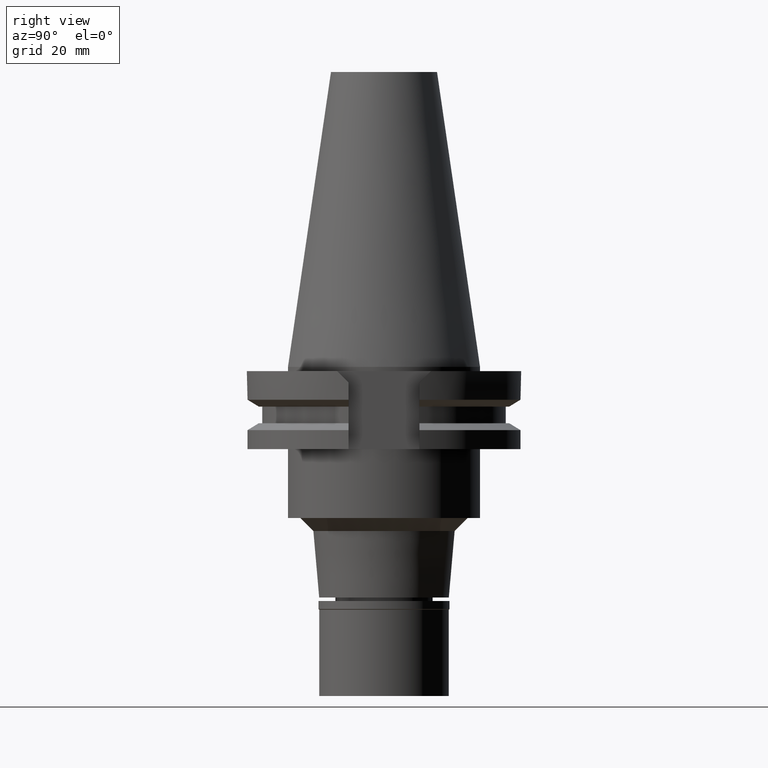
[diagram: clean part render]
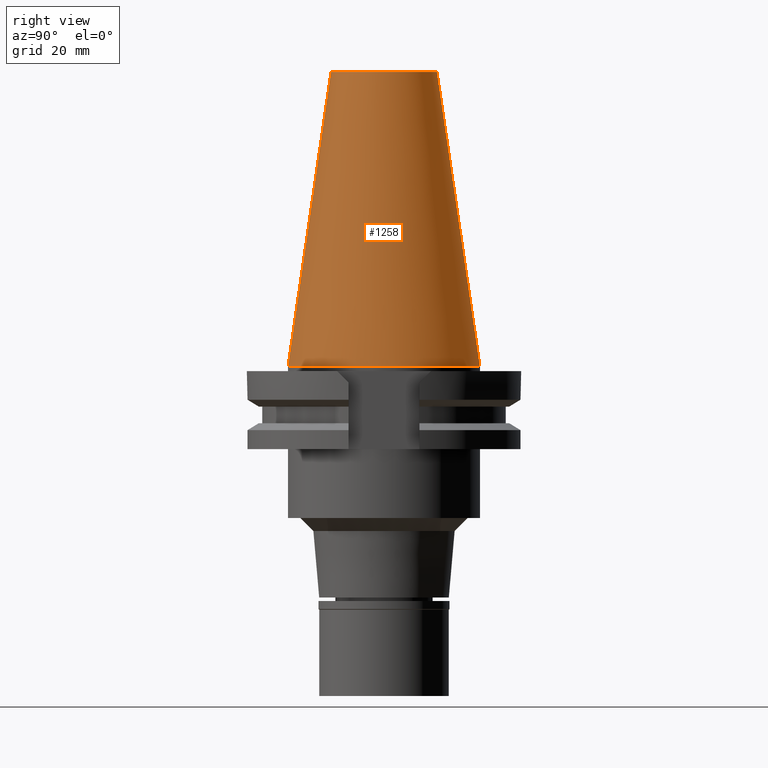
[diagram: same view with one face highlighted and labeled with its STEP entity id]
A machine part, right view. The second image highlights one B-rep face of the part: STEP entity #1258.
In plain terms, the highlighted conical surface has half-angle 8.297 deg.
Its self-contained STEP definition (entity closure, byte-faithful):
#10 = DIRECTION ( 'NONE',  ( 0.0000000000000000000, 0.0000000000000000000, -1.000000000000000000 ) ) ;
#99 = EDGE_CURVE ( 'NONE', #853, #2482, #369, .T. ) ;
#369 = CIRCLE ( 'NONE', #424, 12.27186888070000137 ) ;
#397 = EDGE_CURVE ( 'NONE', #2482, #2145, #1613, .T. ) ;
#424 = AXIS2_PLACEMENT_3D ( 'NONE', #2794, #3005, #2510 ) ;
#475 = VECTOR ( 'NONE', #2663, 1000.000000000000114 ) ;
#484 = AXIS2_PLACEMENT_3D ( 'NONE', #1702, #3018, #1542 ) ;
#537 = ORIENTED_EDGE ( 'NONE', *, *, #99, .T. ) ;
#547 = DIRECTION ( 'NONE',  ( 0.0000000000000000000, -1.000000000000000000, 0.0000000000000000000 ) ) ;
#630 = ORIENTED_EDGE ( 'NONE', *, *, #2006, .F. ) ;
#647 = AXIS2_PLACEMENT_3D ( 'NONE', #1322, #10, #547 ) ;
#853 = VERTEX_POINT ( 'NONE', #1660 ) ;
#882 = LINE ( 'NONE', #2445, #3218 ) ;
#945 = CARTESIAN_POINT ( 'NONE',  ( 0.0000000000000000000, 22.22500000000000142, -2.060573933703999733E-13 ) ) ;
#1251 = CONICAL_SURFACE ( 'NONE', #647, 17.24843444035000317, 0.1448125860318199565 ) ;
#1258 = ADVANCED_FACE ( 'NONE', ( #2631 ), #1251, .T. ) ;
#1322 = CARTESIAN_POINT ( 'NONE',  ( 0.0000000000000000000, 1.642557519355999895E-14, 34.12500000000000000 ) ) ;
#1542 = DIRECTION ( 'NONE',  ( 0.0000000000000000000, 1.000000000000000000, 0.0000000000000000000 ) ) ;
#1613 = LINE ( 'NONE', #2443, #475 ) ;
#1660 = CARTESIAN_POINT ( 'NONE',  ( 0.0000000000000000000, 12.27186888070000137, 68.25000000000000000 ) ) ;
#1702 = CARTESIAN_POINT ( 'NONE',  ( 0.0000000000000000000, 1.642557519355999895E-14, -3.126388037344000570E-13 ) ) ;
#1719 = EDGE_CURVE ( 'NONE', #853, #2480, #882, .T. ) ;
#1850 = CIRCLE ( 'NONE', #484, 22.22500000000000142 ) ;
#2002 = ORIENTED_EDGE ( 'NONE', *, *, #397, .T. ) ;
#2006 = EDGE_CURVE ( 'NONE', #2480, #2145, #1850, .T. ) ;
#2145 = VERTEX_POINT ( 'NONE', #3149 ) ;
#2207 = CARTESIAN_POINT ( 'NONE',  ( 0.0000000000000000000, -12.27186888070000137, 68.25000000000000000 ) ) ;
#2344 = ORIENTED_EDGE ( 'NONE', *, *, #1719, .F. ) ;
#2443 = CARTESIAN_POINT ( 'NONE',  ( 0.0000000000000000000, -12.27186888070000137, 68.25000000000000000 ) ) ;
#2445 = CARTESIAN_POINT ( 'NONE',  ( 0.0000000000000000000, 12.27186888070000137, 68.25000000000000000 ) ) ;
#2480 = VERTEX_POINT ( 'NONE', #945 ) ;
#2482 = VERTEX_POINT ( 'NONE', #2207 ) ;
#2491 = EDGE_LOOP ( 'NONE', ( #537, #2002, #630, #2344 ) ) ;
#2510 = DIRECTION ( 'NONE',  ( 0.0000000000000000000, 1.000000000000000000, 0.0000000000000000000 ) ) ;
#2631 = FACE_OUTER_BOUND ( 'NONE', #2491, .T. ) ;
#2663 = DIRECTION ( 'NONE',  ( 0.0000000000000000000, -0.1443069799456937474, -0.9895329683941577192 ) ) ;
#2686 = DIRECTION ( 'NONE',  ( 0.0000000000000000000, 0.1443069799456937474, -0.9895329683941577192 ) ) ;
#2794 = CARTESIAN_POINT ( 'NONE',  ( 0.0000000000000000000, 1.642557519355999895E-14, 68.25000000000000000 ) ) ;
#3005 = DIRECTION ( 'NONE',  ( 0.0000000000000000000, 0.0000000000000000000, -1.000000000000000000 ) ) ;
#3018 = DIRECTION ( 'NONE',  ( 0.0000000000000000000, 0.0000000000000000000, -1.000000000000000000 ) ) ;
#3149 = CARTESIAN_POINT ( 'NONE',  ( 0.0000000000000000000, -22.22500000000000142, -2.060573933703999733E-13 ) ) ;
#3218 = VECTOR ( 'NONE', #2686, 1000.000000000000114 ) ;